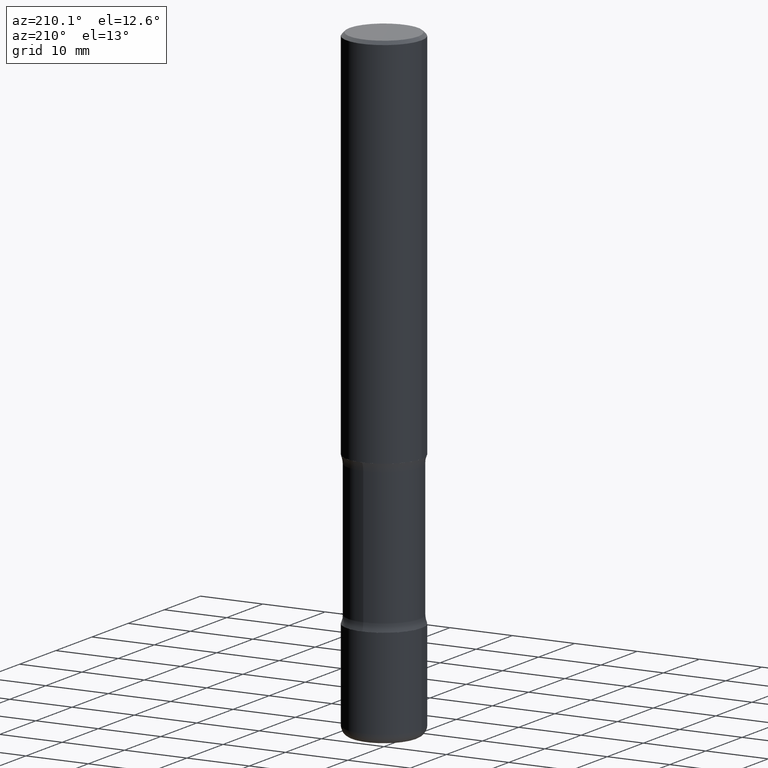
[diagram: clean part render]
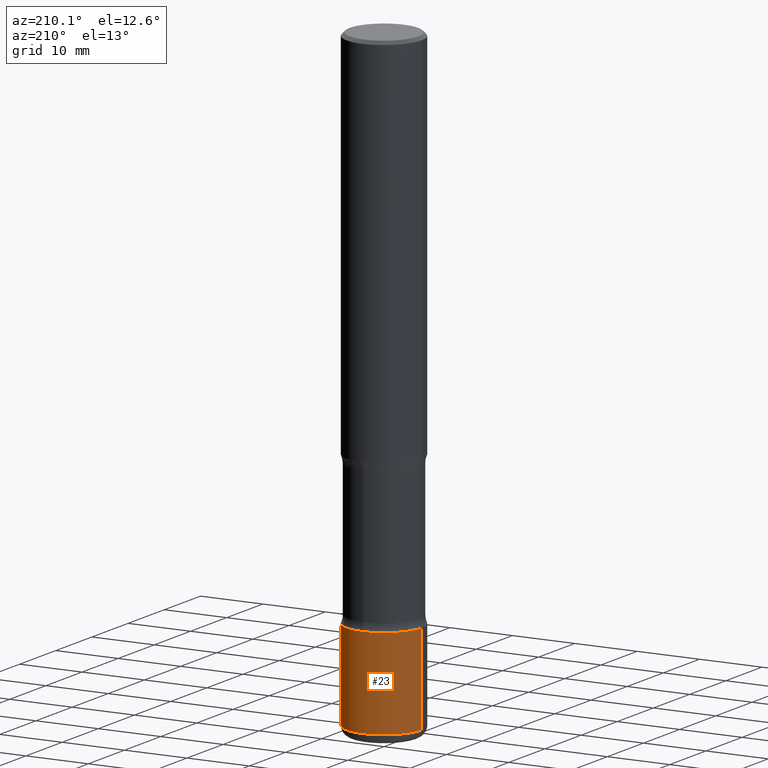
[diagram: same view with one face highlighted and labeled with its STEP entity id]
A machine part, auxiliary view. The second image highlights one B-rep face of the part: STEP entity #23.
In plain terms, the highlighted cylindrical surface (partial cylindrical patch) has radius 5.9995 mm, axis along (-0, 0, 1).
Its self-contained STEP definition (entity closure, byte-faithful):
#23 = ADVANCED_FACE ( 'NONE', ( #41 ), #349, .T. ) ;
#30 = LINE ( 'NONE', #161, #42 ) ;
#32 = ORIENTED_EDGE ( 'NONE', *, *, #221, .T. ) ;
#41 = FACE_OUTER_BOUND ( 'NONE', #446, .T. ) ;
#42 = VECTOR ( 'NONE', #456, 39.37007874015748143 ) ;
#60 = DIRECTION ( 'NONE',  ( -2.445468806185136877E-29, 3.491481338843145188E-15, 1.000000000000000000 ) ) ;
#62 = VERTEX_POINT ( 'NONE', #86 ) ;
#86 = CARTESIAN_POINT ( 'NONE',  ( 0.2362000000000002153, -1.319605372015766534E-14, -3.307100000000000151 ) ) ;
#90 = EDGE_CURVE ( 'NONE', #263, #418, #407, .T. ) ;
#96 = DIRECTION ( 'NONE',  ( -2.445468806185136597E-29, 3.491481338843145583E-15, 1.000000000000000000 ) ) ;
#103 = CARTESIAN_POINT ( 'NONE',  ( 9.483283483505340095E-29, -1.353961548389983302E-14, -3.877899999999999459 ) ) ;
#125 = DIRECTION ( 'NONE',  ( 1.000000000000000000, -6.982962677686266711E-15, 4.876176775795936353E-29 ) ) ;
#143 = DIRECTION ( 'NONE',  ( 1.000000000000000000, -6.982962677686270655E-15, 0.000000000000000000 ) ) ;
#161 = CARTESIAN_POINT ( 'NONE',  ( 0.2362000000000002709, -1.649375784469498103E-15, 1.151752954443001489E-29 ) ) ;
#175 = ORIENTED_EDGE ( 'NONE', *, *, #90, .T. ) ;
#183 = DIRECTION ( 'NONE',  ( -2.445468806185136597E-29, 3.491481338843145583E-15, 1.000000000000000000 ) ) ;
#214 = AXIS2_PLACEMENT_3D ( 'NONE', #103, #96, #143 ) ;
#221 = EDGE_CURVE ( 'NONE', #418, #545, #539, .T. ) ;
#228 = CARTESIAN_POINT ( 'NONE',  ( 8.087409888934865187E-29, -1.154667793568816723E-14, -3.307100000000000151 ) ) ;
#260 = ORIENTED_EDGE ( 'NONE', *, *, #267, .F. ) ;
#263 = VERTEX_POINT ( 'NONE', #314 ) ;
#267 = EDGE_CURVE ( 'NONE', #62, #545, #378, .T. ) ;
#286 = CARTESIAN_POINT ( 'NONE',  ( -0.2362000000000004374, -1.186131354203447347E-14, -3.877899999999999459 ) ) ;
#289 = EDGE_CURVE ( 'NONE', #263, #62, #30, .T. ) ;
#302 = ORIENTED_EDGE ( 'NONE', *, *, #289, .F. ) ;
#314 = CARTESIAN_POINT ( 'NONE',  ( 0.2362000000000004374, -1.518899126836933270E-14, -3.877899999999999459 ) ) ;
#349 = CYLINDRICAL_SURFACE ( 'NONE', #558, 0.2362000000000002709 ) ;
#358 = DIRECTION ( 'NONE',  ( 1.000000000000000000, -6.982962677686266711E-15, 0.000000000000000000 ) ) ;
#378 = CIRCLE ( 'NONE', #512, 0.2362000000000002153 ) ;
#407 = CIRCLE ( 'NONE', #214, 0.2362000000000003264 ) ;
#418 = VERTEX_POINT ( 'NONE', #286 ) ;
#446 = EDGE_LOOP ( 'NONE', ( #175, #32, #260, #302 ) ) ;
#451 = CARTESIAN_POINT ( 'NONE',  ( -0.2362000000000002709, 1.678301941865358564E-15, -1.161852468318210018E-29 ) ) ;
#456 = DIRECTION ( 'NONE',  ( -2.445468806185136877E-29, 3.491481338843145188E-15, 1.000000000000000000 ) ) ;
#457 = VECTOR ( 'NONE', #60, 39.37007874015748143 ) ;
#511 = CARTESIAN_POINT ( 'NONE',  ( -0.2362000000000002153, -1.086484476792864136E-14, -3.307100000000000151 ) ) ;
#512 = AXIS2_PLACEMENT_3D ( 'NONE', #228, #183, #358 ) ;
#518 = CARTESIAN_POINT ( 'NONE',  ( 0.000000000000000000, 0.000000000000000000, 0.000000000000000000 ) ) ;
#539 = LINE ( 'NONE', #451, #457 ) ;
#545 = VERTEX_POINT ( 'NONE', #511 ) ;
#558 = AXIS2_PLACEMENT_3D ( 'NONE', #518, #559, #125 ) ;
#559 = DIRECTION ( 'NONE',  ( -2.445468806185136597E-29, 3.491481338843145583E-15, 1.000000000000000000 ) ) ;